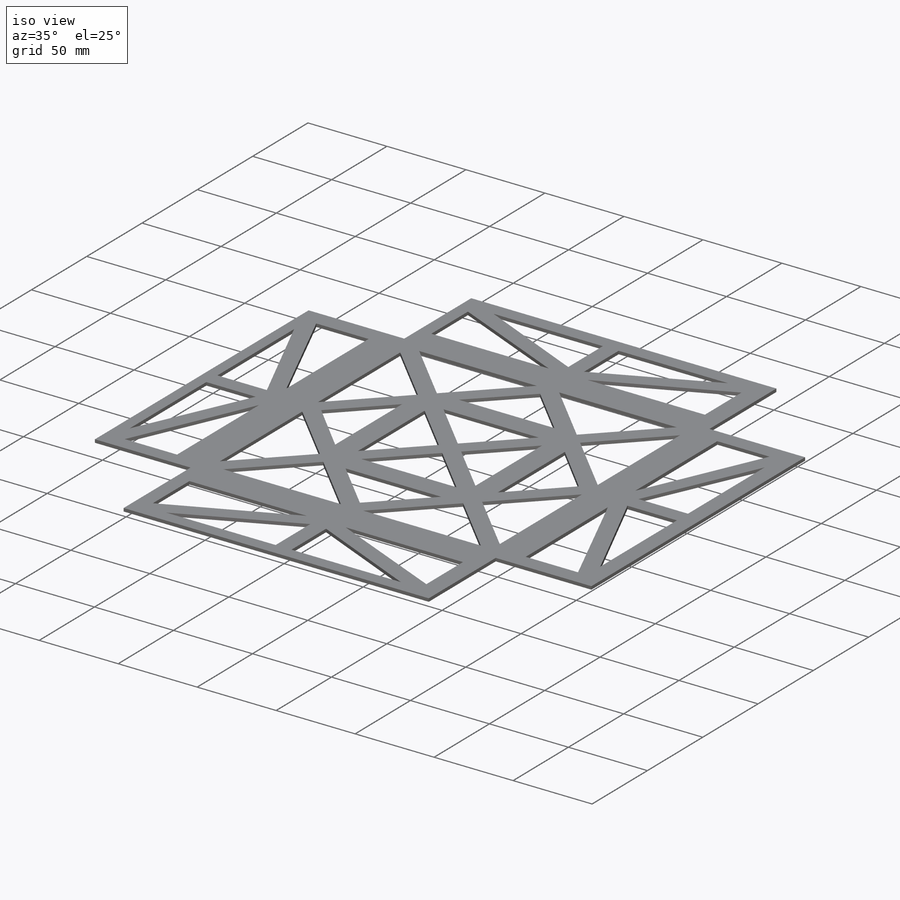
[diagram: iso view]
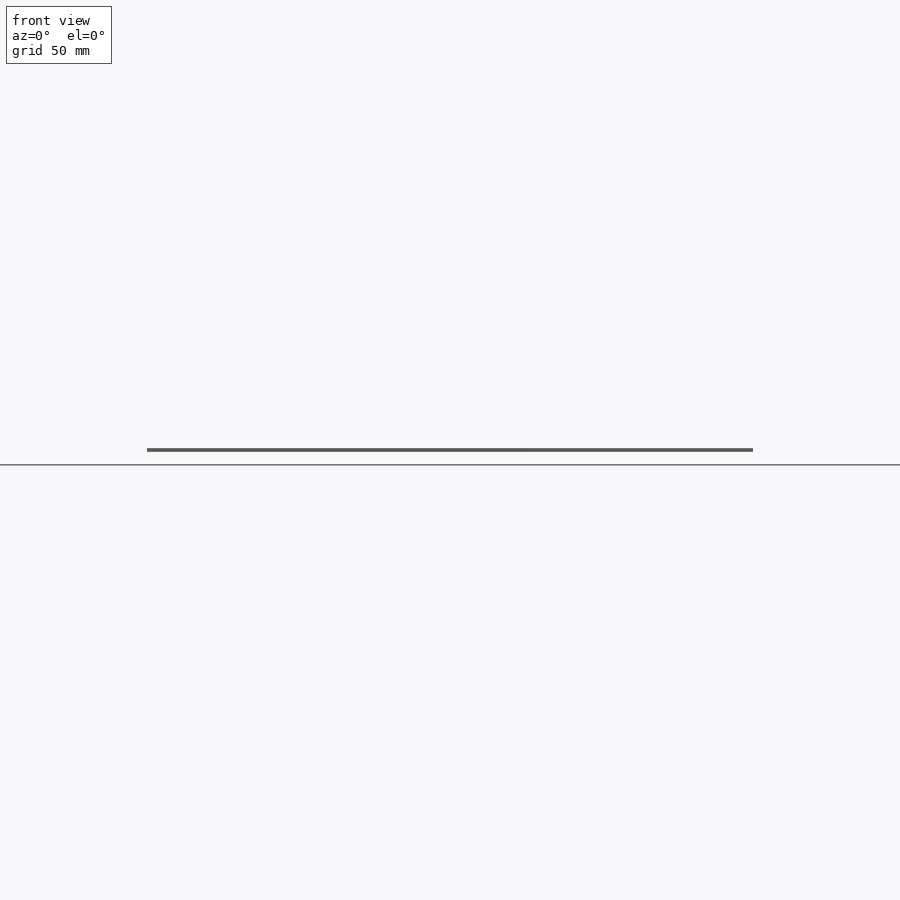
[diagram: front view]
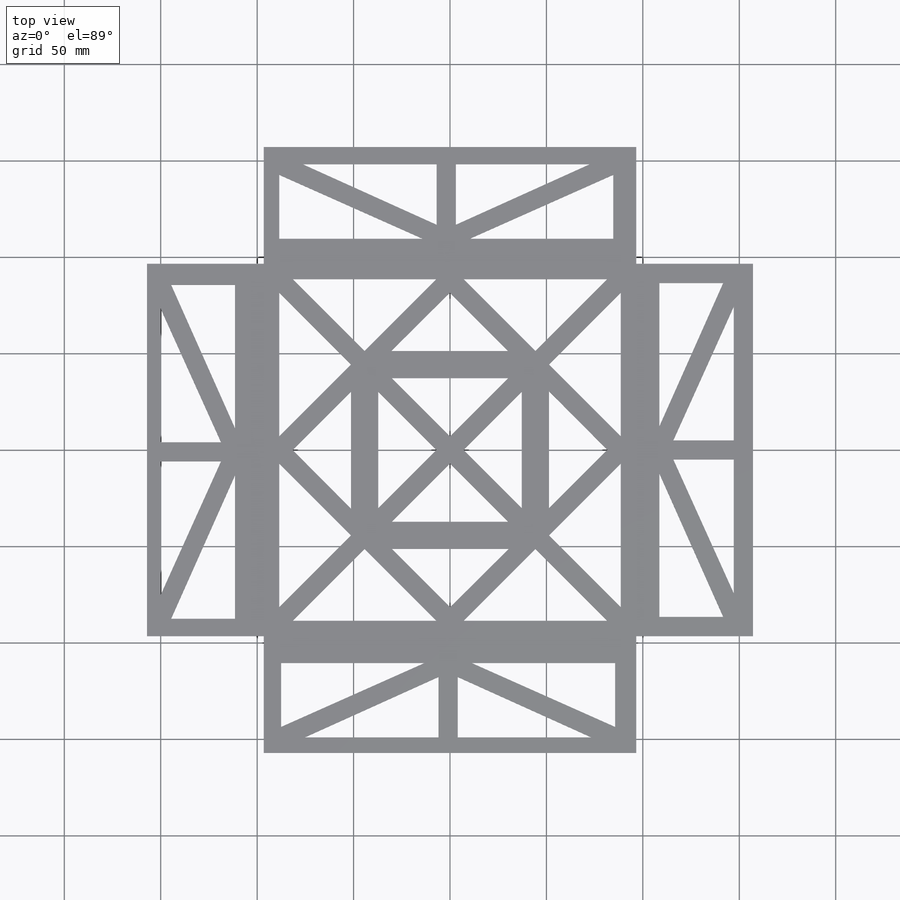
[diagram: top view]
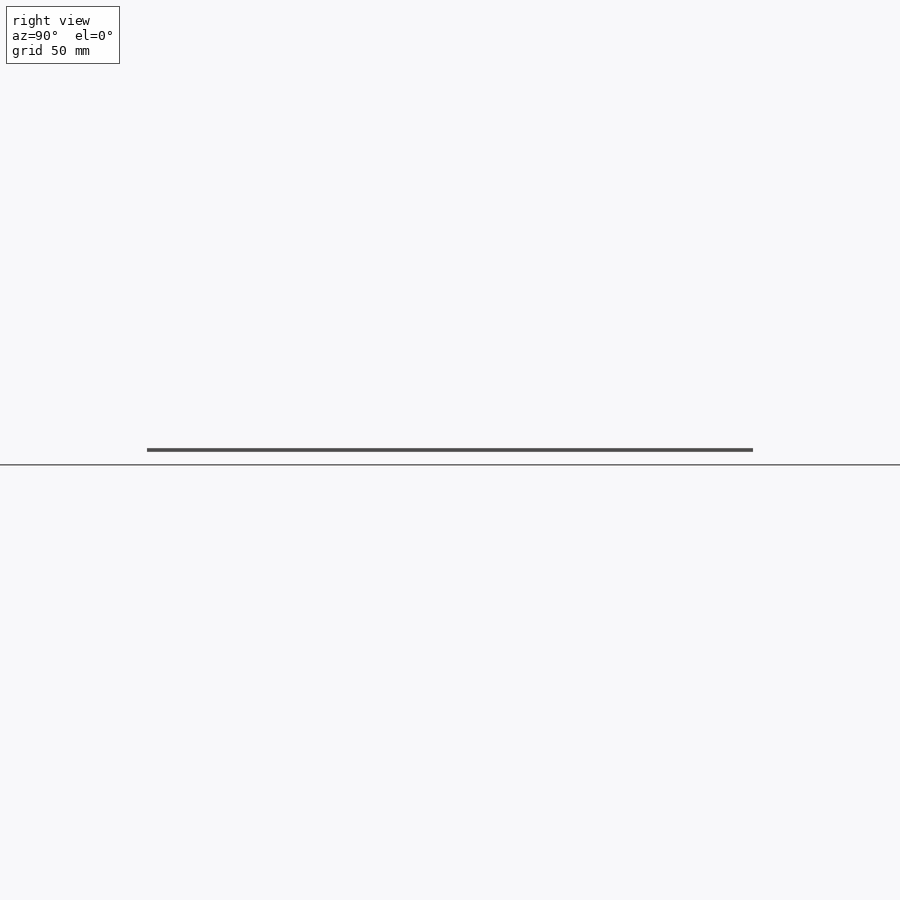
[diagram: right view]
SOLIDWORKS PART (.sldprt)
format: sldprt  version: not decoded by parser v0  size: 529,920 bytes
history: native  units: mm
features: sketch x7, cut_extrude x2, material x1, extrude x1, shell x1, sheet_metal_op x1 + 4 further entries (+12 scaffold rows collapsed; 1 parser-record rows omitted)
feature tree (30):
  scaffold x12  (default folders/planes/origin — collapsed)
  material  "Material <not specified>"
  sketch  "Sketch35"  dims[D1=200.0mm D2=60.0mm]
  extrude  "Boss-Extrude3"  Depth=200mm
  shell  "Shell2"  Thickness=1.587mm SharpBend11=0 SharpBend12=0 SharpBend13=0
  sketch  "Bend-Lines12"
  sketch  "Bounding-Box12"
  sketch  "Sketch40"  dims[c1.D1=10.0mm c1.D2=10.0mm c1.D3=10.0mm c1.D4=10.0mm c1.D5=10.0mm c1.D6=10.0mm c1.D7=5.0mm c2.D6=5.0mm c2.D8=5.0mm c2.D9=5.0mm c2.D2=5.0mm]
  cut_extrude  "Cut-Extrude2"  [1 undecoded]
  sketch  "Sketch41"  dims[c1.D1=10.0mm c1.D2=10.0mm c1.D3=10.0mm c1.D4=~1.98501mm c1.D5=~185.156583mm c2.D4=~193.171573mm c3.D4=90.0deg c4.D4=10.0mm c4.D5=5.0mm c4.D6=5.0mm c4.D7=5.0mm c4.D8=5.0mm c5.D4=~40.749864mm c6.D4=90.0deg c7.D4=5.0mm c7.D5=5.0mm c8.D4=4.0]
  cut_extrude  "Cut-Extrude3"  [1 undecoded]
  sheet_metal_op  "Sheet-Metal(11)"
  "Flat-Pattern(11)"
  sketch  "Bend-Lines13"
  sketch  "Bounding-Box13"
  "Flatten-<SharpBend11>1"
  "Flatten-<SharpBend12>1"
  "Flatten-<SharpBend13>1"
  parser-record x1  (decoder bookkeeping rows leaked as tree rows — omitted from the tree; the rows remain in map.json)
decode coverage: 5 of 12 modeling features carry decoded parameters; 4 rows unclassified (native names shown)
note: ~ marks probable driven/reference dimensions
note: 2 parameter values undecoded
note: suppression state not decoded; provenance and decode notes live in map.json
